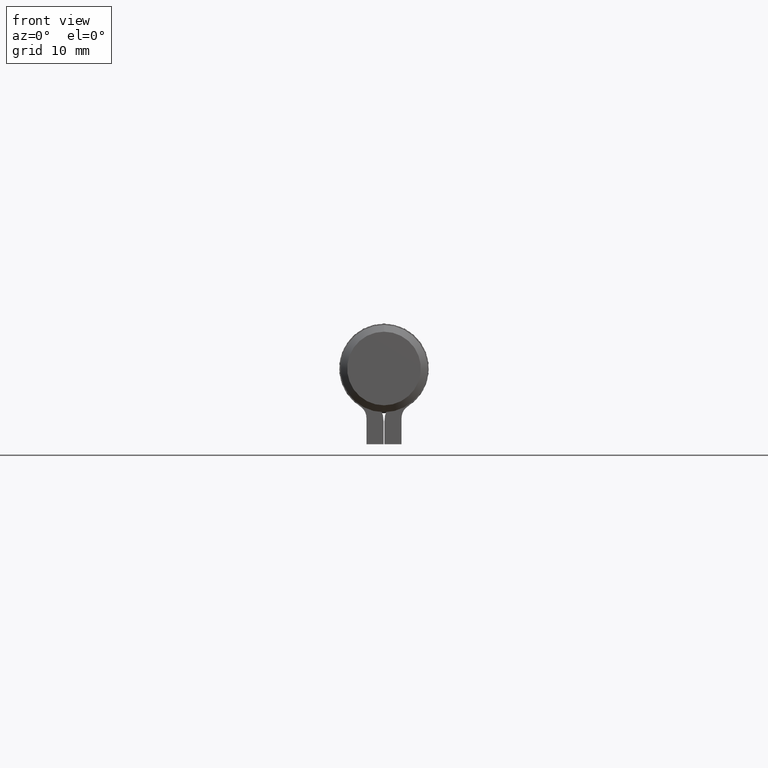
[diagram: clean part render]
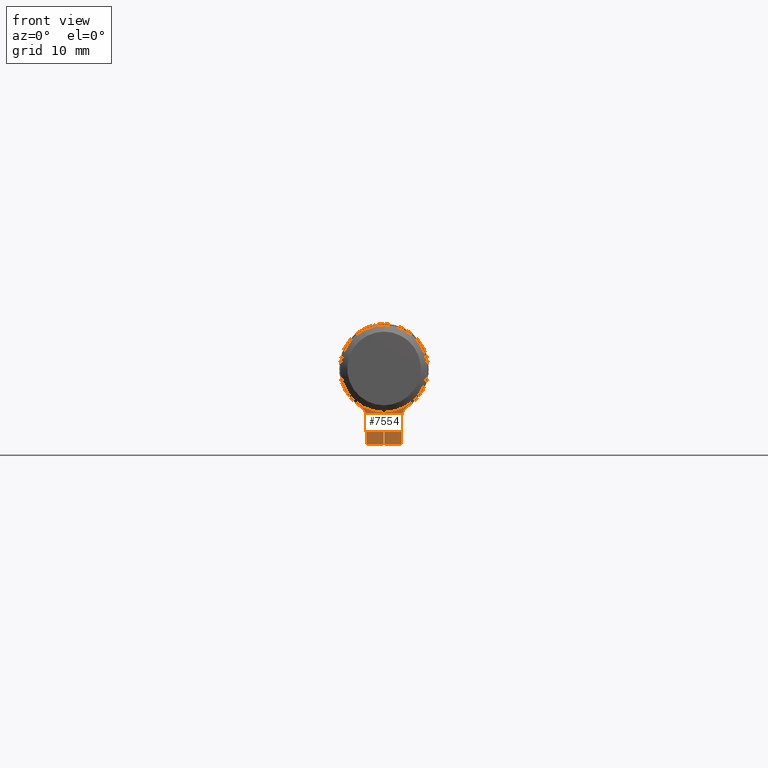
[diagram: same view with one face highlighted and labeled with its STEP entity id]
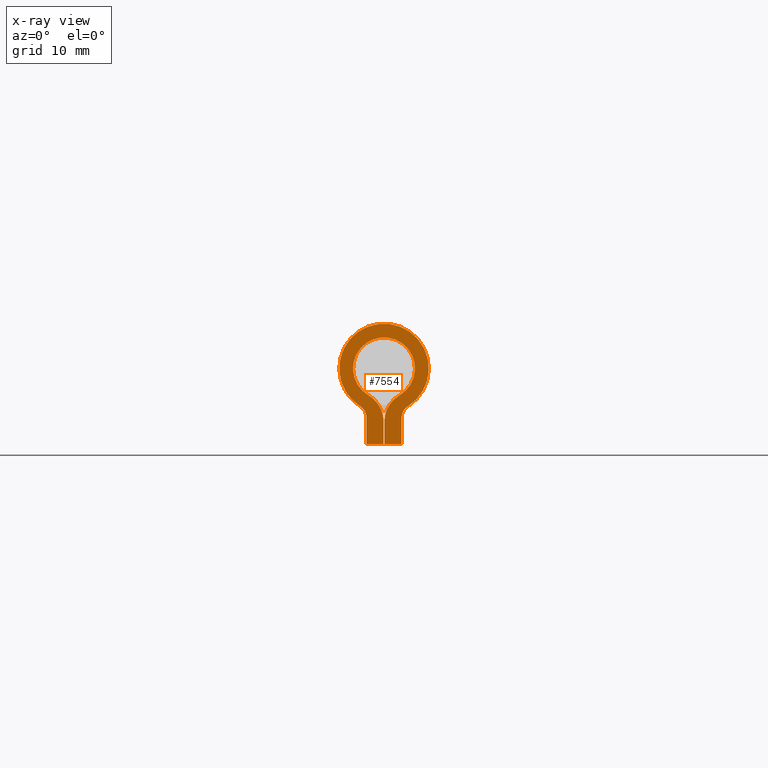
[diagram: x-ray of the same camera — body ghosted, the highlighted face saturated]
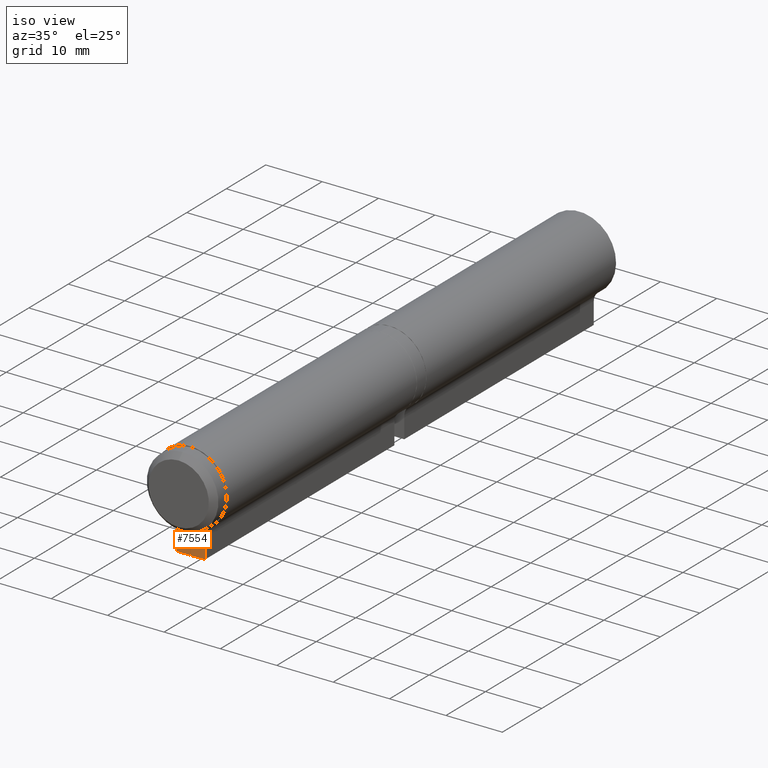
[diagram: same view with one face highlighted and labeled with its STEP entity id]
A machine part, front view. The second image highlights one B-rep face of the part: STEP entity #7554.
The next image is the same camera in x-ray: the body ghosted, the highlighted face saturated — about 0% of this face is hidden behind the body in this view.
A second angle (iso view) of the same face is appended — the face is thin or edge-on in the first view.
In plain terms, the highlighted planar face has unit normal (0, 1, 0).
Its self-contained STEP definition (entity closure, byte-faithful):
#17 = VERTEX_POINT ( 'NONE', #8769 ) ;
#58 = VERTEX_POINT ( 'NONE', #12064 ) ;
#206 = AXIS2_PLACEMENT_3D ( 'NONE', #9990, #12169, #5419 ) ;
#216 = EDGE_CURVE ( 'NONE', #11275, #4474, #3717, .T. ) ;
#295 = DIRECTION ( 'NONE',  ( 0.000000000000000000, 1.000000000000000000, -0.000000000000000000 ) ) ;
#366 = DIRECTION ( 'NONE',  ( -1.131174045444106414E-16, 0.000000000000000000, 1.000000000000000000 ) ) ;
#453 = AXIS2_PLACEMENT_3D ( 'NONE', #5012, #6155, #12700 ) ;
#480 = CARTESIAN_POINT ( 'NONE',  ( 2.550000000000000266, -24.00000000000000000, -11.00000000000000355 ) ) ;
#483 = DIRECTION ( 'NONE',  ( -1.000000000000000000, -0.000000000000000000, -0.000000000000000000 ) ) ;
#491 = CARTESIAN_POINT ( 'NONE',  ( -2.550000000000000266, -24.00000000000000000, -11.00000000000000355 ) ) ;
#1027 = EDGE_CURVE ( 'NONE', #11402, #13487, #7121, .T. ) ;
#1077 = DIRECTION ( 'NONE',  ( -0.000000000000000000, -1.000000000000000000, -0.000000000000000000 ) ) ;
#1162 = VERTEX_POINT ( 'NONE', #6976 ) ;
#1311 = CIRCLE ( 'NONE', #7430, 4.499999999999999112 ) ;
#1419 = LINE ( 'NONE', #10345, #12371 ) ;
#1481 = AXIS2_PLACEMENT_3D ( 'NONE', #11004, #1077, #2065 ) ;
#1647 = CIRCLE ( 'NONE', #8960, 2.000000000000000888 ) ;
#1812 = ORIENTED_EDGE ( 'NONE', *, *, #2499, .F. ) ;
#2019 = CARTESIAN_POINT ( 'NONE',  ( 2.550000000000000266, -24.00000000000000000, -11.00000000000000355 ) ) ;
#2048 = ORIENTED_EDGE ( 'NONE', *, *, #216, .F. ) ;
#2065 = DIRECTION ( 'NONE',  ( 0.000000000000000000, 0.000000000000000000, 1.000000000000000000 ) ) ;
#2136 = CARTESIAN_POINT ( 'NONE',  ( 0.05000000000000006523, -24.00000000000000000, -11.00000000000000355 ) ) ;
#2316 = LINE ( 'NONE', #480, #12925 ) ;
#2499 = EDGE_CURVE ( 'NONE', #4474, #4015, #12441, .T. ) ;
#2509 = AXIS2_PLACEMENT_3D ( 'NONE', #8692, #10813, #13992 ) ;
#2685 = DIRECTION ( 'NONE',  ( -0.000000000000000000, -1.000000000000000000, 0.000000000000000000 ) ) ;
#3196 = EDGE_CURVE ( 'NONE', #1162, #12373, #8322, .T. ) ;
#3502 = EDGE_CURVE ( 'NONE', #12373, #11402, #2316, .T. ) ;
#3717 = LINE ( 'NONE', #491, #8357 ) ;
#3721 = EDGE_CURVE ( 'NONE', #10682, #1162, #1647, .T. ) ;
#3722 = DIRECTION ( 'NONE',  ( 0.000000000000000000, 0.000000000000000000, 1.000000000000000000 ) ) ;
#4015 = VERTEX_POINT ( 'NONE', #13779 ) ;
#4128 = CIRCLE ( 'NONE', #2509, 4.499999999999999112 ) ;
#4474 = VERTEX_POINT ( 'NONE', #12819 ) ;
#4482 = CARTESIAN_POINT ( 'NONE',  ( -4.550000000000000711, -24.00000000000000000, -7.179658766264591208 ) ) ;
#4532 = DIRECTION ( 'NONE',  ( -0.000000000000000000, -0.000000000000000000, -1.000000000000000000 ) ) ;
#4593 = EDGE_CURVE ( 'NONE', #12179, #17, #1311, .T. ) ;
#4605 = VECTOR ( 'NONE', #483, 1000.000000000000000 ) ;
#4714 = ORIENTED_EDGE ( 'NONE', *, *, #1027, .F. ) ;
#4823 = DIRECTION ( 'NONE',  ( -1.131174045444106414E-16, -0.000000000000000000, -1.000000000000000000 ) ) ;
#5012 = CARTESIAN_POINT ( 'NONE',  ( 0.000000000000000000, -24.00000000000000000, 0.000000000000000000 ) ) ;
#5369 = VECTOR ( 'NONE', #4532, 1000.000000000000000 ) ;
#5417 = EDGE_LOOP ( 'NONE', ( #10815, #9942, #7574, #6850, #1812, #2048, #12174, #7731, #8744, #10488, #10721, #4714 ) ) ;
#5419 = DIRECTION ( 'NONE',  ( 0.000000000000000000, -0.000000000000000000, 1.000000000000000000 ) ) ;
#5706 = AXIS2_PLACEMENT_3D ( 'NONE', #4482, #5708, #13369 ) ;
#5708 = DIRECTION ( 'NONE',  ( -0.000000000000000000, -1.000000000000000000, 0.000000000000000000 ) ) ;
#5887 = CARTESIAN_POINT ( 'NONE',  ( -2.550000000000000266, -24.00000000000000000, -11.00000000000000355 ) ) ;
#5905 = CARTESIAN_POINT ( 'NONE',  ( 0.05000000000000006523, -24.00000000000000000, -11.00000000000000355 ) ) ;
#5969 = CIRCLE ( 'NONE', #453, 6.499999999999999112 ) ;
#6127 = LINE ( 'NONE', #5887, #4605 ) ;
#6155 = DIRECTION ( 'NONE',  ( 0.000000000000000000, 1.000000000000000000, 0.000000000000000000 ) ) ;
#6467 = PLANE ( 'NONE',  #206 ) ;
#6667 = DIRECTION ( 'NONE',  ( 0.000000000000000000, 0.000000000000000000, -1.000000000000000000 ) ) ;
#6850 = ORIENTED_EDGE ( 'NONE', *, *, #8965, .F. ) ;
#6909 = CARTESIAN_POINT ( 'NONE',  ( 0.04999999999999969746, -24.00000000000000000, -7.765146489281448794 ) ) ;
#6976 = CARTESIAN_POINT ( 'NONE',  ( 2.550000000000000266, -24.00000000000000000, -7.179658766264591208 ) ) ;
#7121 = LINE ( 'NONE', #5905, #10597 ) ;
#7406 = EDGE_CURVE ( 'NONE', #58, #12179, #9158, .T. ) ;
#7430 = AXIS2_PLACEMENT_3D ( 'NONE', #8877, #295, #6667 ) ;
#7554 = ADVANCED_FACE ( 'NONE', ( #8618 ), #6467, .F. ) ;
#7574 = ORIENTED_EDGE ( 'NONE', *, *, #3721, .F. ) ;
#7731 = ORIENTED_EDGE ( 'NONE', *, *, #8516, .F. ) ;
#8322 = LINE ( 'NONE', #12081, #5369 ) ;
#8357 = VECTOR ( 'NONE', #3722, 1000.000000000000000 ) ;
#8516 = EDGE_CURVE ( 'NONE', #17, #13952, #1419, .T. ) ;
#8618 = FACE_OUTER_BOUND ( 'NONE', #5417, .T. ) ;
#8692 = CARTESIAN_POINT ( 'NONE',  ( 4.549999999999998934, -24.00000000000000000, -7.765146489281447906 ) ) ;
#8744 = ORIENTED_EDGE ( 'NONE', *, *, #4593, .F. ) ;
#8769 = CARTESIAN_POINT ( 'NONE',  ( -0.04999999999999969746, -24.00000000000000000, -7.765146489281448794 ) ) ;
#8877 = CARTESIAN_POINT ( 'NONE',  ( -4.549999999999998934, -24.00000000000000000, -7.765146489281447906 ) ) ;
#8960 = AXIS2_PLACEMENT_3D ( 'NONE', #13709, #2685, #9235 ) ;
#8965 = EDGE_CURVE ( 'NONE', #4015, #10682, #5969, .T. ) ;
#9158 = CIRCLE ( 'NONE', #1481, 4.499999999999999112 ) ;
#9235 = DIRECTION ( 'NONE',  ( 0.000000000000000000, 0.000000000000000000, -1.000000000000000000 ) ) ;
#9652 = CARTESIAN_POINT ( 'NONE',  ( 3.479411764705883314, -24.00000000000000000, -5.490327291849392388 ) ) ;
#9777 = CARTESIAN_POINT ( 'NONE',  ( -2.550000000000000266, -24.00000000000000000, -11.00000000000000355 ) ) ;
#9942 = ORIENTED_EDGE ( 'NONE', *, *, #3196, .F. ) ;
#9990 = CARTESIAN_POINT ( 'NONE',  ( 4.549999999999998934, -24.00000000000000000, -7.765146489281447906 ) ) ;
#10253 = CARTESIAN_POINT ( 'NONE',  ( -0.05000000000000006523, -24.00000000000000000, -11.00000000000000355 ) ) ;
#10345 = CARTESIAN_POINT ( 'NONE',  ( -0.05000000000000006523, -24.00000000000000000, -11.00000000000000355 ) ) ;
#10488 = ORIENTED_EDGE ( 'NONE', *, *, #7406, .F. ) ;
#10597 = VECTOR ( 'NONE', #366, 1000.000000000000000 ) ;
#10682 = VERTEX_POINT ( 'NONE', #9652 ) ;
#10721 = ORIENTED_EDGE ( 'NONE', *, *, #12387, .F. ) ;
#10813 = DIRECTION ( 'NONE',  ( 0.000000000000000000, 1.000000000000000000, 0.000000000000000000 ) ) ;
#10815 = ORIENTED_EDGE ( 'NONE', *, *, #3502, .F. ) ;
#11004 = CARTESIAN_POINT ( 'NONE',  ( 0.000000000000000000, -24.00000000000000000, 0.000000000000000000 ) ) ;
#11275 = VERTEX_POINT ( 'NONE', #9777 ) ;
#11402 = VERTEX_POINT ( 'NONE', #2136 ) ;
#11434 = CARTESIAN_POINT ( 'NONE',  ( -2.274999999999999023, -24.00000000000000000, -3.882573244640724397 ) ) ;
#12064 = CARTESIAN_POINT ( 'NONE',  ( 2.274999999999998135, -24.00000000000000000, -3.882573244640723953 ) ) ;
#12081 = CARTESIAN_POINT ( 'NONE',  ( 2.550000000000000266, -24.00000000000000000, -11.00000000000000355 ) ) ;
#12169 = DIRECTION ( 'NONE',  ( 0.000000000000000000, 1.000000000000000000, 0.000000000000000000 ) ) ;
#12174 = ORIENTED_EDGE ( 'NONE', *, *, #13724, .F. ) ;
#12179 = VERTEX_POINT ( 'NONE', #11434 ) ;
#12371 = VECTOR ( 'NONE', #4823, 1000.000000000000000 ) ;
#12373 = VERTEX_POINT ( 'NONE', #2019 ) ;
#12387 = EDGE_CURVE ( 'NONE', #13487, #58, #4128, .T. ) ;
#12441 = CIRCLE ( 'NONE', #5706, 2.000000000000000888 ) ;
#12700 = DIRECTION ( 'NONE',  ( 0.000000000000000000, 0.000000000000000000, 1.000000000000000000 ) ) ;
#12756 = DIRECTION ( 'NONE',  ( -1.000000000000000000, 0.000000000000000000, 0.000000000000000000 ) ) ;
#12819 = CARTESIAN_POINT ( 'NONE',  ( -2.550000000000000266, -24.00000000000000000, -7.179658766264591208 ) ) ;
#12925 = VECTOR ( 'NONE', #12756, 1000.000000000000000 ) ;
#13369 = DIRECTION ( 'NONE',  ( 0.000000000000000000, 0.000000000000000000, -1.000000000000000000 ) ) ;
#13487 = VERTEX_POINT ( 'NONE', #6909 ) ;
#13709 = CARTESIAN_POINT ( 'NONE',  ( 4.550000000000000711, -24.00000000000000000, -7.179658766264591208 ) ) ;
#13724 = EDGE_CURVE ( 'NONE', #13952, #11275, #6127, .T. ) ;
#13779 = CARTESIAN_POINT ( 'NONE',  ( -3.479411764705881094, -24.00000000000000000, -5.490327291849393276 ) ) ;
#13952 = VERTEX_POINT ( 'NONE', #10253 ) ;
#13992 = DIRECTION ( 'NONE',  ( 0.000000000000000000, 0.000000000000000000, 1.000000000000000000 ) ) ;